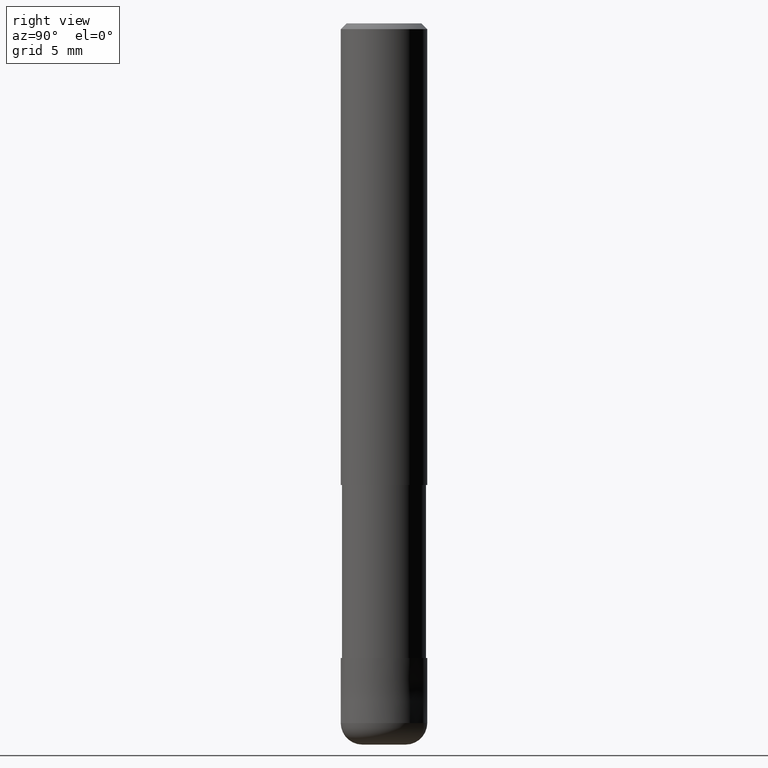
[diagram: clean part render]
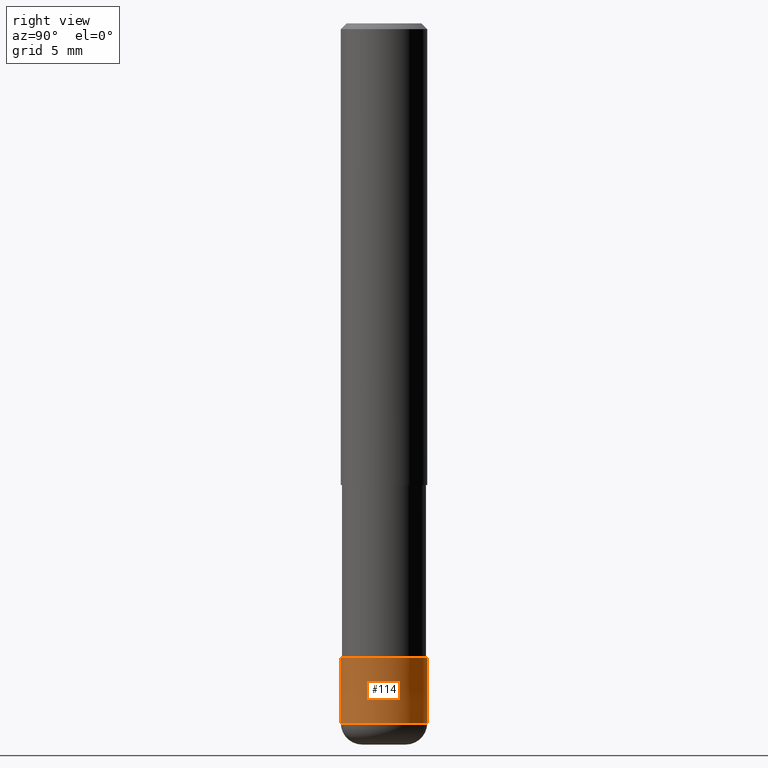
[diagram: same view with one face highlighted and labeled with its STEP entity id]
A machine part, right view. The second image highlights one B-rep face of the part: STEP entity #114.
In plain terms, the highlighted conical surface has half-angle 0.001 deg.
Its self-contained STEP definition (entity closure, byte-faithful):
#112=EDGE_CURVE('',#156,#206,#251,.T.);
#114=ADVANCED_FACE('',(#253),#254,.T.);
#124=VERTEX_POINT('',#268);
#138=VERTEX_POINT('',#282);
#156=VERTEX_POINT('',#300);
#168=EDGE_CURVE('',#206,#124,#314,.T.);
#170=EDGE_CURVE('',#156,#138,#316,.T.);
#198=EDGE_CURVE('',#124,#138,#351,.T.);
#206=VERTEX_POINT('',#359);
#251=LINE('',#404,#405);
#253=FACE_OUTER_BOUND('',#407,.T.);
#254=CONICAL_SURFACE('',#408,2.99995,2.22222222186111E-005);
#268=CARTESIAN_POINT('',(3.67381906146713E-016,-3.0,-48.5));
#282=CARTESIAN_POINT('',(3.67369660083175E-016,-2.9999,-44.0));
#300=CARTESIAN_POINT('',(0.0,2.9999,-44.0));
#314=CIRCLE('',#477,3.0);
#316=CIRCLE('',#480,2.9999);
#351=LINE('',#522,#523);
#359=CARTESIAN_POINT('',(0.0,3.0,-48.5));
#404=CARTESIAN_POINT('',(-3.67375783114944E-016,2.99995,-46.25));
#405=VECTOR('',#571,1.0);
#407=EDGE_LOOP('',(#573,#574,#575,#576));
#408=AXIS2_PLACEMENT_3D('',#577,#578,#579);
#477=AXIS2_PLACEMENT_3D('',#647,#648,#649);
#480=AXIS2_PLACEMENT_3D('',#650,#651,#652);
#522=CARTESIAN_POINT('',(3.67375783114944E-016,-2.99995,-46.25));
#523=VECTOR('',#705,1.0);
#571=DIRECTION('',(-2.72134745227242E-021,2.22222222167822E-005,-0.999999999753086));
#573=ORIENTED_EDGE('',*,*,#112,.F.);
#574=ORIENTED_EDGE('',*,*,#170,.T.);
#575=ORIENTED_EDGE('',*,*,#198,.F.);
#576=ORIENTED_EDGE('',*,*,#168,.F.);
#577=CARTESIAN_POINT('',(0.0,0.0,-46.25));
#578=DIRECTION('',(0.0,-0.0,-1.0));
#579=DIRECTION('',(0.0,1.0,0.0));
#647=CARTESIAN_POINT('',(0.0,0.0,-48.5));
#648=DIRECTION('',(0.0,0.0,-1.0));
#649=DIRECTION('',(0.0,1.0,0.0));
#650=CARTESIAN_POINT('',(0.0,0.0,-44.0));
#651=DIRECTION('',(0.0,0.0,-1.0));
#652=DIRECTION('',(0.0,1.0,0.0));
#705=DIRECTION('',(-2.72134745227242E-021,2.22222222167822E-005,0.999999999753086));